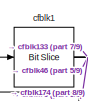
[diagram: root canvas - part 1/9, top left region]
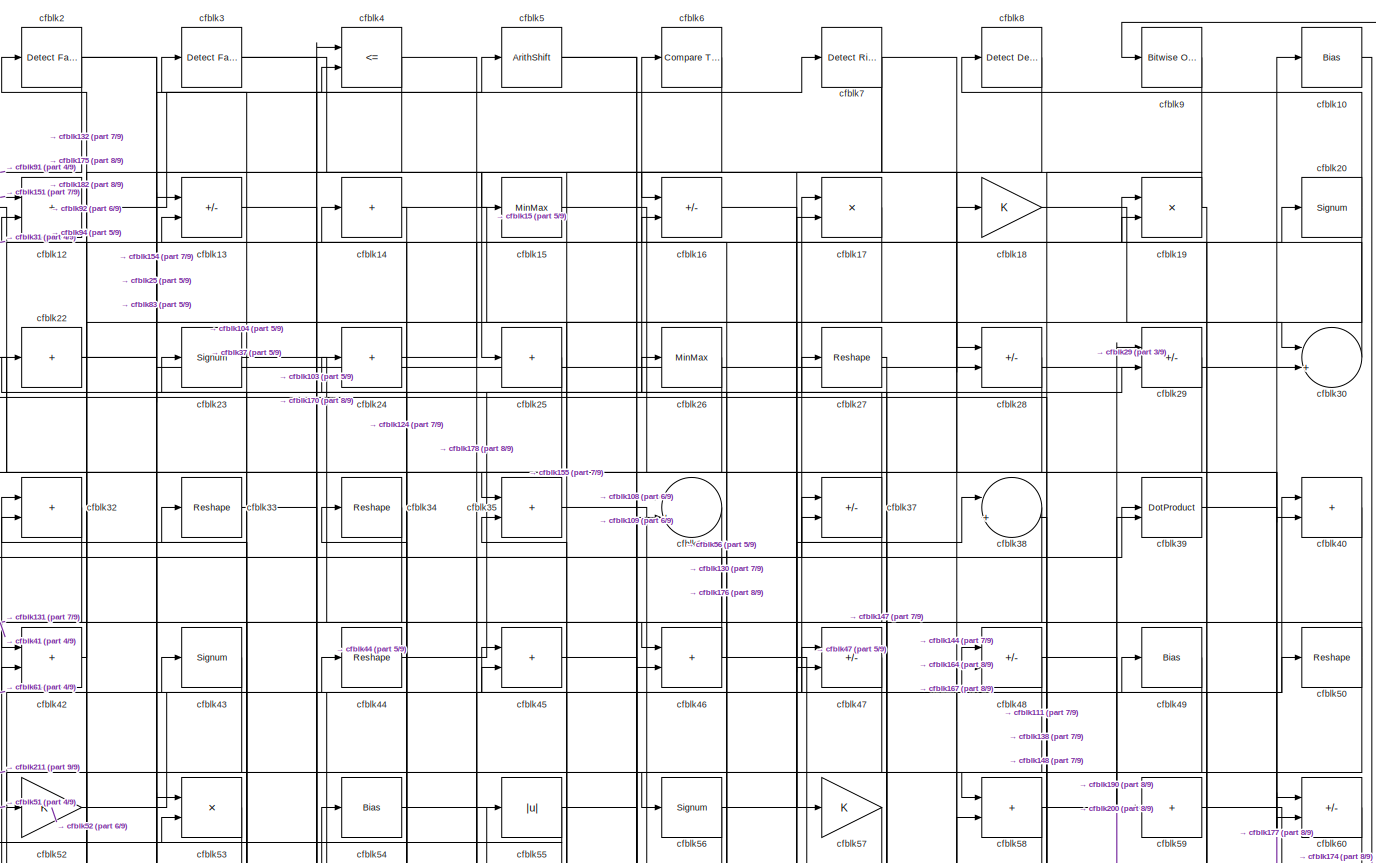
[diagram: root canvas - part 2/9, full width, top band]
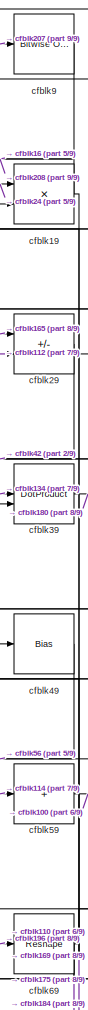
[diagram: root canvas - part 3/9, top right region]
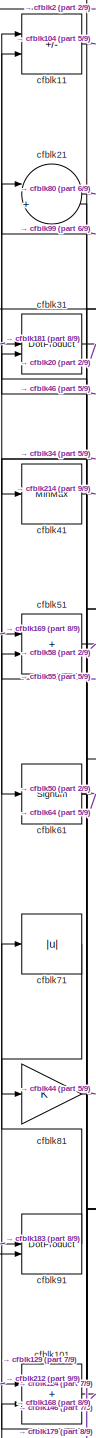
[diagram: root canvas - part 4/9, top left region]
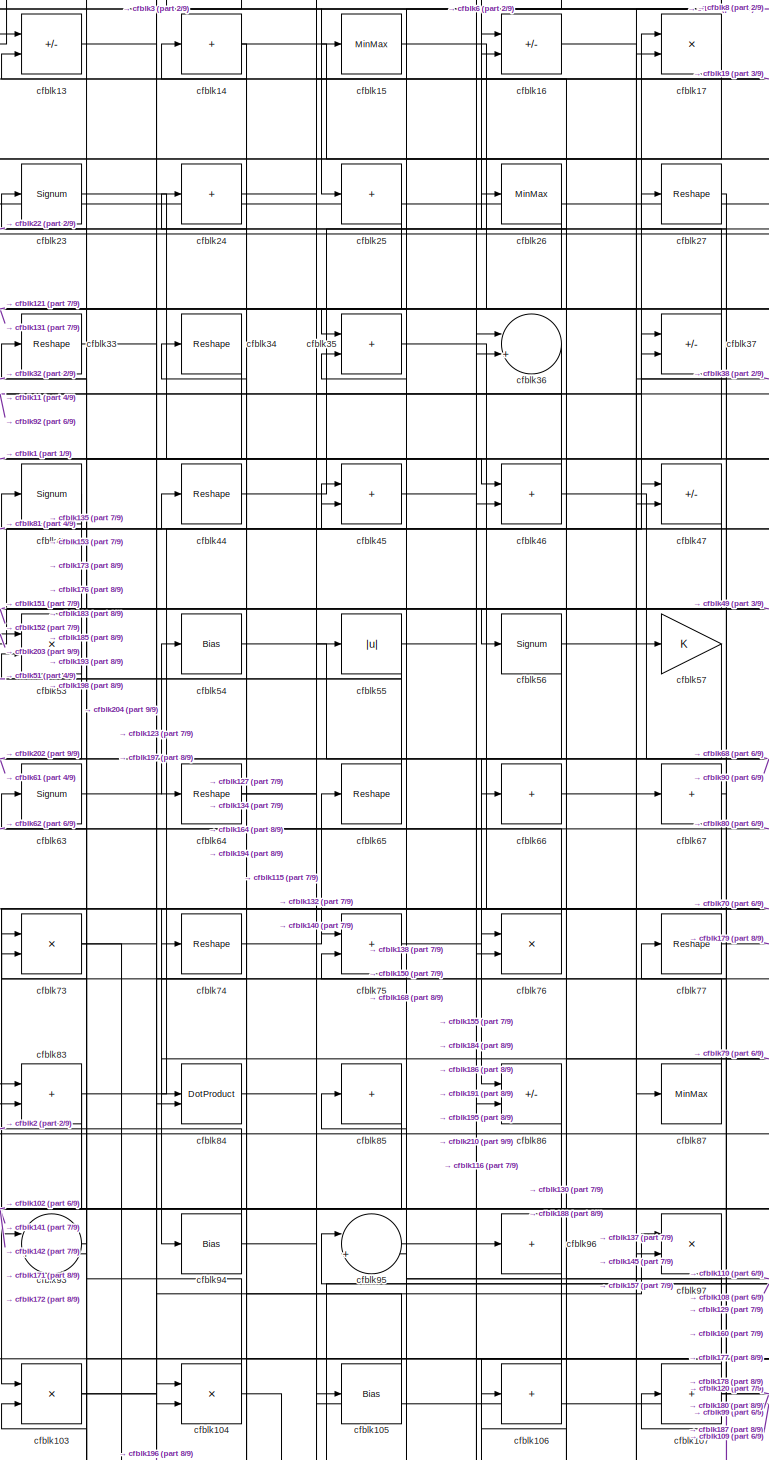
[diagram: root canvas - part 5/9, top center region]
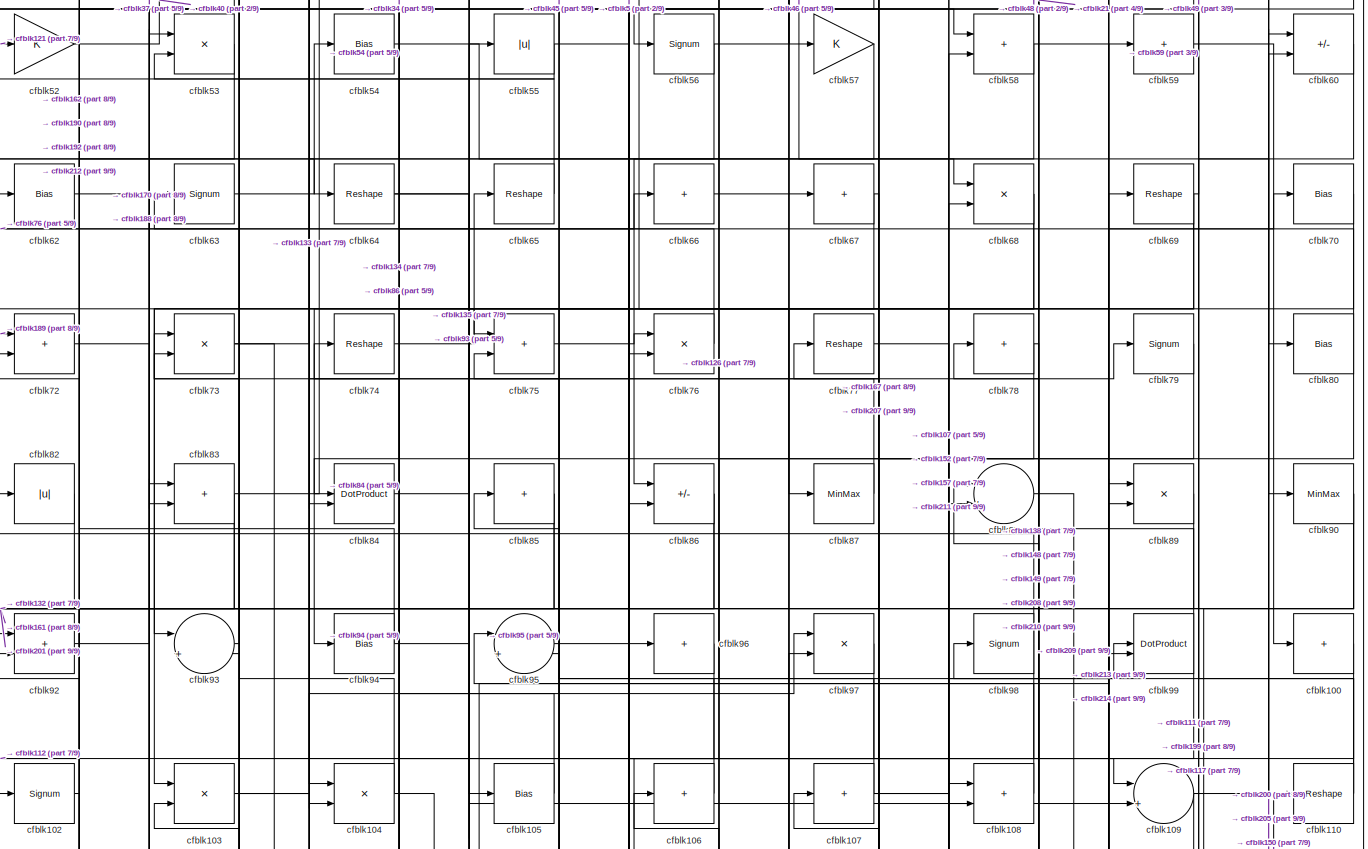
[diagram: root canvas - part 6/9, full width, middle band]
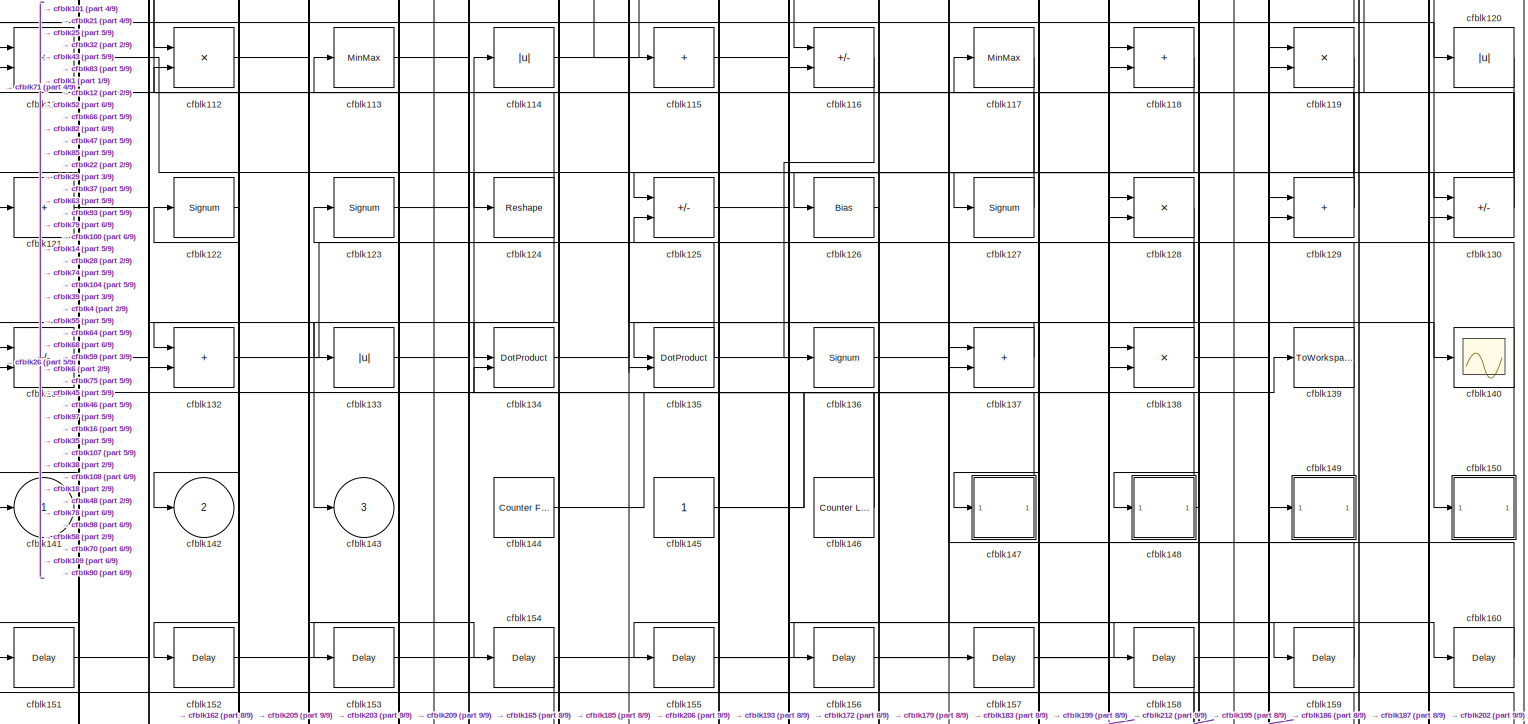
[diagram: root canvas - part 7/9, full width, middle band]
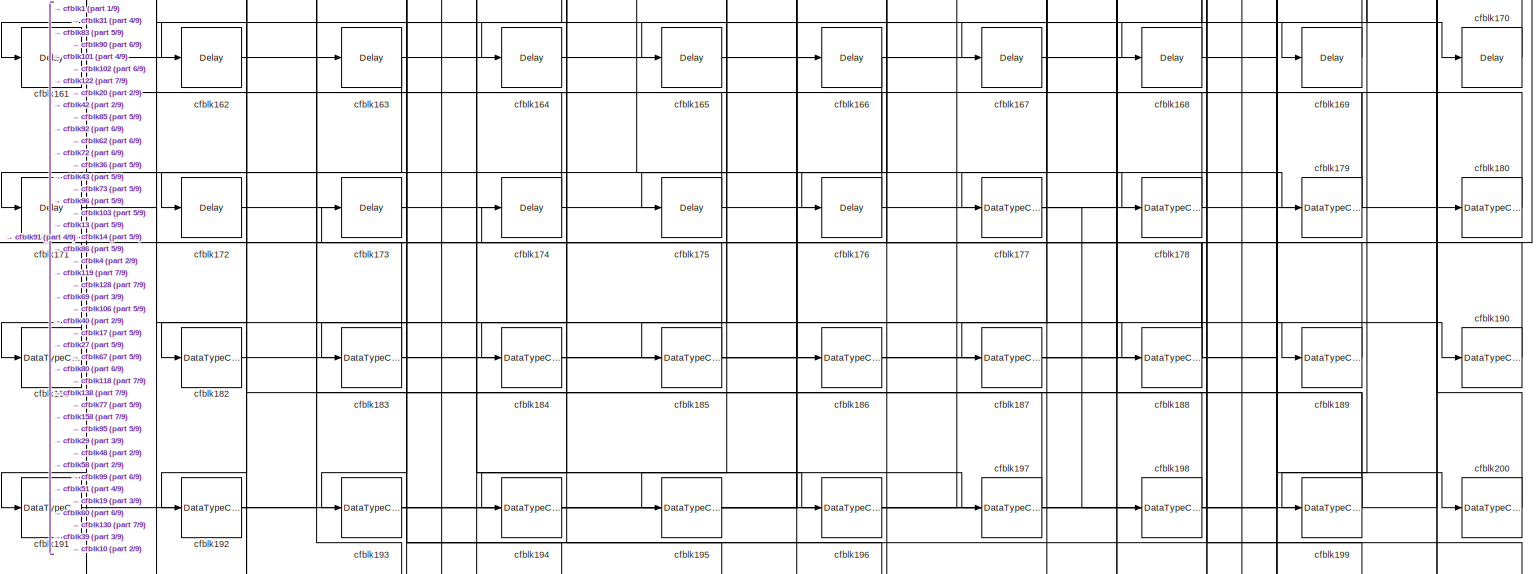
[diagram: root canvas - part 8/9, full width, bottom band]
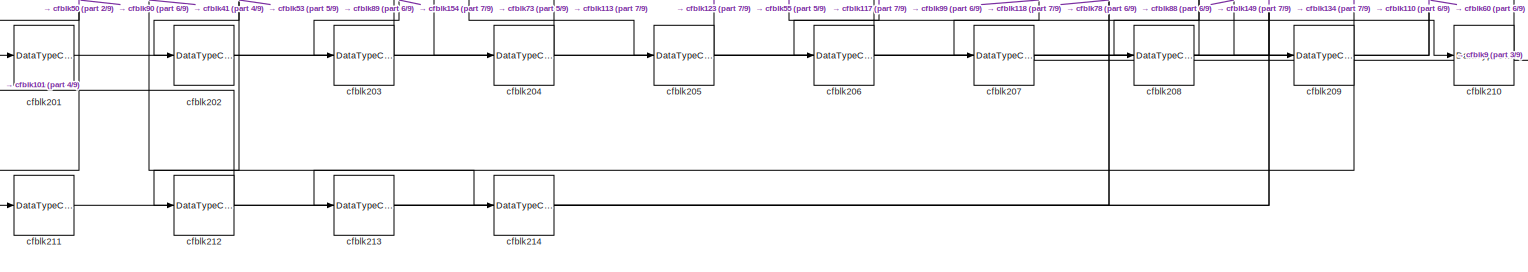
[diagram: root canvas - part 9/9, full width, bottom band]
MODEL slx_18f6e114f823
KIND model
CONFIG AbsTol = auto
CONFIG EnableMultiTasking = off
CONFIG FixedStep = auto
CONFIG MaxStep = auto
CONFIG MinStep = auto
CONFIG RelTol = 1e-3
CONFIG SampleTimeConstraint = Unconstrained
CONFIG SolverName = VariableStepAuto
CONFIG StartTime = 0.0
CONFIG StopTime = 10.0
BLOCK [Reference] cfblk1  REF=hdlsllib/Logic and Bit
Operations/Bit Slice
  SourceBlock = hdlsllib/Logic and Bit\nOperations/Bit Slice
  SourceType = Bit Slice
BLOCK [Bias] cfblk10
  Bias = 0.0
  SaturateOnIntegerOverflow = off
BLOCK [Sum] cfblk100
  IconShape = rectangular
  Inputs = +
BLOCK [Sum] cfblk101
  IconShape = rectangular
BLOCK [Signum] cfblk102
BLOCK [Product] cfblk103
  Inputs = */
  RndMeth = Zero
  SaturateOnIntegerOverflow = on
BLOCK [Product] cfblk104
  Inputs = */
  RndMeth = Zero
  SaturateOnIntegerOverflow = on
BLOCK [Bias] cfblk105
  Bias = 0.0
  SaturateOnIntegerOverflow = off
BLOCK [Sum] cfblk106
  IconShape = rectangular
  Inputs = +
BLOCK [Sum] cfblk107
  IconShape = rectangular
  Inputs = +
BLOCK [Sum] cfblk108
  IconShape = rectangular
BLOCK [Sum] cfblk109
  Inputs = |++
BLOCK [Sum] cfblk11
  IconShape = rectangular
  Inputs = +-
BLOCK [Reshape] cfblk110
BLOCK [Sum] cfblk111
  IconShape = rectangular
BLOCK [Product] cfblk112
  Inputs = */
  RndMeth = Zero
  SaturateOnIntegerOverflow = on
BLOCK [MinMax] cfblk113
BLOCK [Abs] cfblk114
  SaturateOnIntegerOverflow = off
BLOCK [Sum] cfblk115
  IconShape = rectangular
  Inputs = +
BLOCK [Sum] cfblk116
  IconShape = rectangular
  Inputs = +-
BLOCK [MinMax] cfblk117
BLOCK [Sum] cfblk118
  IconShape = rectangular
BLOCK [Product] cfblk119
  Inputs = */
  RndMeth = Zero
  SaturateOnIntegerOverflow = on
BLOCK [Sum] cfblk12
  IconShape = rectangular
BLOCK [Abs] cfblk120
  SaturateOnIntegerOverflow = off
BLOCK [Sum] cfblk121
  IconShape = rectangular
  Inputs = +
BLOCK [Signum] cfblk122
BLOCK [Signum] cfblk123
BLOCK [Reshape] cfblk124
BLOCK [Sum] cfblk125
  IconShape = rectangular
  Inputs = +-
BLOCK [Bias] cfblk126
  Bias = 0.0
  SaturateOnIntegerOverflow = off
BLOCK [Signum] cfblk127
BLOCK [Product] cfblk128
  Inputs = */
  RndMeth = Zero
  SaturateOnIntegerOverflow = on
BLOCK [Sum] cfblk129
  IconShape = rectangular
BLOCK [Sum] cfblk13
  IconShape = rectangular
  Inputs = +-
BLOCK [Sum] cfblk130
  IconShape = rectangular
  Inputs = +-
BLOCK [Sum] cfblk131
  IconShape = rectangular
  Inputs = +-
BLOCK [Sum] cfblk132
  IconShape = rectangular
BLOCK [Abs] cfblk133
  SaturateOnIntegerOverflow = off
BLOCK [DotProduct] cfblk134
  OutDataTypeStr = Inherit: Inherit via internal rule
BLOCK [DotProduct] cfblk135
  OutDataTypeStr = Inherit: Inherit via internal rule
BLOCK [Signum] cfblk136
BLOCK [Sum] cfblk137
  IconShape = rectangular
BLOCK [Product] cfblk138
  Inputs = */
  RndMeth = Zero
  SaturateOnIntegerOverflow = on
BLOCK [ToWorkspace] cfblk139
  MaxDataPoints = inf
  SampleTime = -1
  SaveFormat = Timeseries
  VariableName = simout
BLOCK [Sum] cfblk14
  IconShape = rectangular
  Inputs = +
BLOCK [Scope] cfblk140
  Floating = off
  NumInputPorts = 1
  ScopeSpecificationString = Simulink.scopes.TimeScopeBlockCfg('CurrentConfiguration', extmgr.ConfigurationSet(extmgr.Configuration('Core','General UI',true),extmgr.Configuration('Core','Source UI',true),extmgr.Configuration('Sources','WiredSimulink',true,'DataLoggingVariableName','ScopeData2','DataLoggingSaveFormat','Array','DataLoggingLimitDataPoints',true,'DataLoggingDecimation','1'),extmgr.Configuration('Visuals','Time Do...<+868ch>
BLOCK [Outport] cfblk141
  VectorParamsAs1DForOutWhenUnconnected = off
BLOCK [Outport] cfblk142
  Port = 2
  VectorParamsAs1DForOutWhenUnconnected = off
BLOCK [Outport] cfblk143
  Port = 3
  VectorParamsAs1DForOutWhenUnconnected = off
BLOCK [Reference] cfblk144  REF=hdlsllib/Sources/Counter
Free-Running
  SourceBlock = hdlsllib/Sources/Counter\nFree-Running
  SourceType = Counter Free-Running
BLOCK [Constant] cfblk145
  SampleTime = -1
BLOCK [Reference] cfblk146  REF=hdlsllib/Sources/Counter
Limited
  SourceBlock = hdlsllib/Sources/Counter\nLimited
  SourceType = Counter Limited
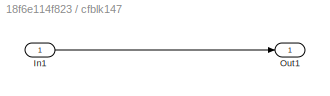
BLOCK [SubSystem] cfblk147
  LibrarySourceBlock = hdlsllib/Ports &\nSubsystems/Subsystem
BLOCK [Inport] cfblk147/In1
BLOCK [Outport] cfblk147/Out1
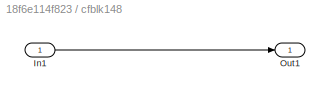
BLOCK [SubSystem] cfblk148
  LibrarySourceBlock = hdlsllib/Ports &\nSubsystems/Subsystem
BLOCK [Inport] cfblk148/In1
BLOCK [Outport] cfblk148/Out1
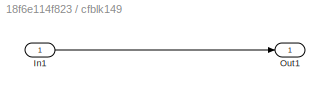
BLOCK [SubSystem] cfblk149
  LibrarySourceBlock = hdlsllib/Ports &\nSubsystems/Subsystem
BLOCK [Inport] cfblk149/In1
BLOCK [Outport] cfblk149/Out1
BLOCK [MinMax] cfblk15
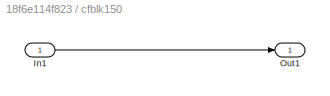
BLOCK [SubSystem] cfblk150
  LibrarySourceBlock = hdlsllib/Ports &\nSubsystems/Subsystem
BLOCK [Inport] cfblk150/In1
BLOCK [Outport] cfblk150/Out1
BLOCK [Delay] cfblk151
  InputPortMap = u0
  SampleTime = 1
BLOCK [Delay] cfblk152
  InputPortMap = u0
  SampleTime = 1
BLOCK [Delay] cfblk153
  InputPortMap = u0
  SampleTime = 1
BLOCK [Delay] cfblk154
  InputPortMap = u0
  SampleTime = 1
BLOCK [Delay] cfblk155
  InputPortMap = u0
  SampleTime = 1
BLOCK [Delay] cfblk156
  InputPortMap = u0
  SampleTime = 1
BLOCK [Delay] cfblk157
  InputPortMap = u0
  SampleTime = 1
BLOCK [Delay] cfblk158
  InputPortMap = u0
  SampleTime = 1
BLOCK [Delay] cfblk159
  InputPortMap = u0
  SampleTime = 1
BLOCK [Sum] cfblk16
  IconShape = rectangular
  Inputs = +-
BLOCK [Delay] cfblk160
  InputPortMap = u0
  SampleTime = 1
BLOCK [Delay] cfblk161
  InputPortMap = u0
  SampleTime = 1
BLOCK [Delay] cfblk162
  InputPortMap = u0
  SampleTime = 1
BLOCK [Delay] cfblk163
  InputPortMap = u0
  SampleTime = 1
BLOCK [Delay] cfblk164
  InputPortMap = u0
  SampleTime = 1
BLOCK [Delay] cfblk165
  InputPortMap = u0
  SampleTime = 1
BLOCK [Delay] cfblk166
  InputPortMap = u0
  SampleTime = 1
BLOCK [Delay] cfblk167
  InputPortMap = u0
  SampleTime = 1
BLOCK [Delay] cfblk168
  InputPortMap = u0
  SampleTime = 1
BLOCK [Delay] cfblk169
  InputPortMap = u0
  SampleTime = 1
BLOCK [Product] cfblk17
  Inputs = */
  RndMeth = Zero
  SaturateOnIntegerOverflow = on
BLOCK [Delay] cfblk170
  InputPortMap = u0
  SampleTime = 1
BLOCK [Delay] cfblk171
  InputPortMap = u0
  SampleTime = 1
BLOCK [Delay] cfblk172
  InputPortMap = u0
  SampleTime = 1
BLOCK [Delay] cfblk173
  InputPortMap = u0
  SampleTime = 1
BLOCK [Delay] cfblk174
  InputPortMap = u0
  SampleTime = 1
BLOCK [Delay] cfblk175
  InputPortMap = u0
  SampleTime = 1
BLOCK [Delay] cfblk176
  InputPortMap = u0
  SampleTime = 1
BLOCK [DataTypeConversion] cfblk177
  RndMeth = Floor
  SaturateOnIntegerOverflow = off
BLOCK [DataTypeConversion] cfblk178
  OutDataTypeStr = uint8
  RndMeth = Floor
  SaturateOnIntegerOverflow = off
BLOCK [DataTypeConversion] cfblk179
  RndMeth = Floor
  SaturateOnIntegerOverflow = off
BLOCK [Gain] cfblk18
BLOCK [DataTypeConversion] cfblk180
  OutDataTypeStr = uint8
  RndMeth = Floor
  SaturateOnIntegerOverflow = off
BLOCK [DataTypeConversion] cfblk181
  OutDataTypeStr = uint8
  RndMeth = Floor
  SaturateOnIntegerOverflow = off
BLOCK [DataTypeConversion] cfblk182
  OutDataTypeStr = uint8
  RndMeth = Floor
  SaturateOnIntegerOverflow = off
BLOCK [DataTypeConversion] cfblk183
  RndMeth = Floor
  SaturateOnIntegerOverflow = off
BLOCK [DataTypeConversion] cfblk184
  OutDataTypeStr = uint8
  RndMeth = Floor
  SaturateOnIntegerOverflow = off
BLOCK [DataTypeConversion] cfblk185
  RndMeth = Floor
  SaturateOnIntegerOverflow = off
BLOCK [DataTypeConversion] cfblk186
  OutDataTypeStr = uint8
  RndMeth = Floor
  SaturateOnIntegerOverflow = off
BLOCK [DataTypeConversion] cfblk187
  OutDataTypeStr = uint8
  RndMeth = Floor
  SaturateOnIntegerOverflow = off
BLOCK [DataTypeConversion] cfblk188
  RndMeth = Floor
  SaturateOnIntegerOverflow = off
BLOCK [DataTypeConversion] cfblk189
  OutDataTypeStr = uint8
  RndMeth = Floor
  SaturateOnIntegerOverflow = off
BLOCK [Product] cfblk19
  Inputs = */
  RndMeth = Zero
  SaturateOnIntegerOverflow = on
BLOCK [DataTypeConversion] cfblk190
  OutDataTypeStr = uint8
  RndMeth = Floor
  SaturateOnIntegerOverflow = off
BLOCK [DataTypeConversion] cfblk191
  OutDataTypeStr = uint8
  RndMeth = Floor
  SaturateOnIntegerOverflow = off
BLOCK [DataTypeConversion] cfblk192
  OutDataTypeStr = uint8
  RndMeth = Floor
  SaturateOnIntegerOverflow = off
BLOCK [DataTypeConversion] cfblk193
  RndMeth = Floor
  SaturateOnIntegerOverflow = off
BLOCK [DataTypeConversion] cfblk194
  OutDataTypeStr = uint8
  RndMeth = Floor
  SaturateOnIntegerOverflow = off
BLOCK [DataTypeConversion] cfblk195
  OutDataTypeStr = uint8
  RndMeth = Floor
  SaturateOnIntegerOverflow = off
BLOCK [DataTypeConversion] cfblk196
  RndMeth = Floor
  SaturateOnIntegerOverflow = off
BLOCK [DataTypeConversion] cfblk197
  OutDataTypeStr = uint8
  RndMeth = Floor
  SaturateOnIntegerOverflow = off
BLOCK [DataTypeConversion] cfblk198
  OutDataTypeStr = uint8
  RndMeth = Floor
  SaturateOnIntegerOverflow = off
BLOCK [DataTypeConversion] cfblk199
  RndMeth = Floor
  SaturateOnIntegerOverflow = off
BLOCK [Reference] cfblk2  REF=hdlsllib/Logic and Bit
Operations/Detect Fall
Negative
  SourceBlock = hdlsllib/Logic and Bit\nOperations/Detect Fall\nNegative
  SourceType = Detect Fall Negative
BLOCK [Signum] cfblk20
BLOCK [DataTypeConversion] cfblk200
  OutDataTypeStr = uint8
  RndMeth = Floor
  SaturateOnIntegerOverflow = off
BLOCK [DataTypeConversion] cfblk201
  OutDataTypeStr = uint8
  RndMeth = Floor
  SaturateOnIntegerOverflow = off
BLOCK [DataTypeConversion] cfblk202
  OutDataTypeStr = uint8
  RndMeth = Floor
  SaturateOnIntegerOverflow = off
BLOCK [DataTypeConversion] cfblk203
  OutDataTypeStr = uint8
  RndMeth = Floor
  SaturateOnIntegerOverflow = off
BLOCK [DataTypeConversion] cfblk204
  OutDataTypeStr = uint8
  RndMeth = Floor
  SaturateOnIntegerOverflow = off
BLOCK [DataTypeConversion] cfblk205
  RndMeth = Floor
  SaturateOnIntegerOverflow = off
BLOCK [DataTypeConversion] cfblk206
  OutDataTypeStr = uint8
  RndMeth = Floor
  SaturateOnIntegerOverflow = off
BLOCK [DataTypeConversion] cfblk207
  OutDataTypeStr = boolean
  RndMeth = Floor
  SaturateOnIntegerOverflow = off
BLOCK [DataTypeConversion] cfblk208
  OutDataTypeStr = uint8
  RndMeth = Floor
  SaturateOnIntegerOverflow = off
BLOCK [DataTypeConversion] cfblk209
  RndMeth = Floor
  SaturateOnIntegerOverflow = off
BLOCK [Sum] cfblk21
  Inputs = |++
BLOCK [DataTypeConversion] cfblk210
  OutDataTypeStr = uint8
  RndMeth = Floor
  SaturateOnIntegerOverflow = off
BLOCK [DataTypeConversion] cfblk211
  OutDataTypeStr = uint8
  RndMeth = Floor
  SaturateOnIntegerOverflow = off
BLOCK [DataTypeConversion] cfblk212
  RndMeth = Floor
  SaturateOnIntegerOverflow = off
BLOCK [DataTypeConversion] cfblk213
  OutDataTypeStr = uint8
  RndMeth = Floor
  SaturateOnIntegerOverflow = off
BLOCK [DataTypeConversion] cfblk214
  OutDataTypeStr = uint8
  RndMeth = Floor
  SaturateOnIntegerOverflow = off
BLOCK [Sum] cfblk22
  IconShape = rectangular
  Inputs = +
BLOCK [Signum] cfblk23
BLOCK [Sum] cfblk24
  IconShape = rectangular
  Inputs = +
BLOCK [Sum] cfblk25
  IconShape = rectangular
  Inputs = +
BLOCK [MinMax] cfblk26
BLOCK [Reshape] cfblk27
BLOCK [Sum] cfblk28
  IconShape = rectangular
  Inputs = +-
BLOCK [Sum] cfblk29
  IconShape = rectangular
  Inputs = +-
BLOCK [Reference] cfblk3  REF=hdlsllib/Logic and Bit
Operations/Detect Fall
Nonpositive
  SourceBlock = hdlsllib/Logic and Bit\nOperations/Detect Fall\nNonpositive
  SourceType = Detect Fall Nonpositive
BLOCK [Sum] cfblk30
  Inputs = |++
BLOCK [DotProduct] cfblk31
  OutDataTypeStr = Inherit: Inherit via internal rule
BLOCK [Sum] cfblk32
  IconShape = rectangular
BLOCK [Reshape] cfblk33
BLOCK [Reshape] cfblk34
BLOCK [Sum] cfblk35
  IconShape = rectangular
BLOCK [Sum] cfblk36
  Inputs = |++
BLOCK [Sum] cfblk37
  IconShape = rectangular
  Inputs = +-
BLOCK [Sum] cfblk38
  Inputs = |++
BLOCK [DotProduct] cfblk39
  OutDataTypeStr = Inherit: Inherit via internal rule
BLOCK [RelationalOperator] cfblk4
  InputSameDT = off
  Operator = <=
  OutDataTypeStr = boolean
BLOCK [Sum] cfblk40
  IconShape = rectangular
BLOCK [MinMax] cfblk41
BLOCK [Sum] cfblk42
  IconShape = rectangular
BLOCK [Signum] cfblk43
BLOCK [Reshape] cfblk44
BLOCK [Sum] cfblk45
  IconShape = rectangular
BLOCK [Sum] cfblk46
  IconShape = rectangular
BLOCK [Sum] cfblk47
  IconShape = rectangular
  Inputs = +-
BLOCK [Sum] cfblk48
  IconShape = rectangular
  Inputs = +-
BLOCK [Bias] cfblk49
  Bias = 0.0
  SaturateOnIntegerOverflow = off
BLOCK [ArithShift] cfblk5
  BitShiftNumber = 8
  InputPortMap = u0
BLOCK [Reshape] cfblk50
BLOCK [Sum] cfblk51
  IconShape = rectangular
BLOCK [Gain] cfblk52
BLOCK [Product] cfblk53
  Inputs = */
  RndMeth = Zero
  SaturateOnIntegerOverflow = on
BLOCK [Bias] cfblk54
  Bias = 0.0
  SaturateOnIntegerOverflow = off
BLOCK [Abs] cfblk55
  SaturateOnIntegerOverflow = off
BLOCK [Signum] cfblk56
BLOCK [Gain] cfblk57
BLOCK [Sum] cfblk58
  IconShape = rectangular
BLOCK [Sum] cfblk59
  IconShape = rectangular
  Inputs = +
BLOCK [Reference] cfblk6  REF=hdlsllib/Logic and Bit
Operations/Compare
To Zero
  SourceBlock = hdlsllib/Logic and Bit\nOperations/Compare\nTo Zero
  SourceType = Compare To Zero
BLOCK [Sum] cfblk60
  IconShape = rectangular
  Inputs = +-
BLOCK [Signum] cfblk61
BLOCK [Bias] cfblk62
  Bias = 0.0
  SaturateOnIntegerOverflow = off
BLOCK [Signum] cfblk63
BLOCK [Reshape] cfblk64
BLOCK [Reshape] cfblk65
BLOCK [Sum] cfblk66
  IconShape = rectangular
  Inputs = +
BLOCK [Sum] cfblk67
  IconShape = rectangular
  Inputs = +
BLOCK [Product] cfblk68
  Inputs = */
  RndMeth = Zero
  SaturateOnIntegerOverflow = on
BLOCK [Reshape] cfblk69
BLOCK [Reference] cfblk7  REF=hdlsllib/Logic and Bit
Operations/Detect Rise
Nonnegative
  SourceBlock = hdlsllib/Logic and Bit\nOperations/Detect Rise\nNonnegative
  SourceType = Detect Rise Nonnegative
BLOCK [Bias] cfblk70
  Bias = 0.0
  SaturateOnIntegerOverflow = off
BLOCK [Abs] cfblk71
  SaturateOnIntegerOverflow = off
BLOCK [Sum] cfblk72
  IconShape = rectangular
BLOCK [Product] cfblk73
  Inputs = */
  RndMeth = Zero
  SaturateOnIntegerOverflow = on
BLOCK [Reshape] cfblk74
BLOCK [Sum] cfblk75
  IconShape = rectangular
BLOCK [Product] cfblk76
  Inputs = */
  RndMeth = Zero
  SaturateOnIntegerOverflow = on
BLOCK [Reshape] cfblk77
BLOCK [Sum] cfblk78
  IconShape = rectangular
  Inputs = +
BLOCK [Signum] cfblk79
BLOCK [Reference] cfblk8  REF=simulink/Logic and Bit
Operations/Detect
Decrease
  LibrarySourceBlock = hdlsllib/Logic and Bit\nOperations/Detect\nDecrease
  SourceBlock = simulink/Logic and Bit\nOperations/Detect\nDecrease
  SourceType = Detect Decrease
BLOCK [Bias] cfblk80
  Bias = 0.0
  SaturateOnIntegerOverflow = off
BLOCK [Gain] cfblk81
BLOCK [Abs] cfblk82
  SaturateOnIntegerOverflow = off
BLOCK [Sum] cfblk83
  IconShape = rectangular
BLOCK [DotProduct] cfblk84
  OutDataTypeStr = Inherit: Inherit via internal rule
BLOCK [Sum] cfblk85
  IconShape = rectangular
  Inputs = +
BLOCK [Sum] cfblk86
  IconShape = rectangular
  Inputs = +-
BLOCK [MinMax] cfblk87
BLOCK [Sum] cfblk88
  Inputs = |++
BLOCK [Product] cfblk89
  Inputs = */
  RndMeth = Zero
  SaturateOnIntegerOverflow = on
BLOCK [Reference] cfblk9  REF=simulink/Logic and Bit
Operations/Bitwise
Operator
  LibrarySourceBlock = hdlsllib/Logic and Bit\nOperations/Bitwise\nOperator
  SourceBlock = simulink/Logic and Bit\nOperations/Bitwise\nOperator
  SourceType = Bitwise Operator
BLOCK [MinMax] cfblk90
BLOCK [DotProduct] cfblk91
  OutDataTypeStr = Inherit: Inherit via internal rule
BLOCK [Sum] cfblk92
  IconShape = rectangular
BLOCK [Sum] cfblk93
  Inputs = |++
BLOCK [Bias] cfblk94
  Bias = 0.0
  SaturateOnIntegerOverflow = off
BLOCK [Sum] cfblk95
  Inputs = |++
BLOCK [Sum] cfblk96
  IconShape = rectangular
  Inputs = +
BLOCK [Product] cfblk97
  Inputs = */
  RndMeth = Zero
  SaturateOnIntegerOverflow = on
BLOCK [Signum] cfblk98
BLOCK [DotProduct] cfblk99
  OutDataTypeStr = Inherit: Inherit via internal rule
LINE cfblk100:1 -> cfblk134:1
LINE cfblk101:1 -> cfblk168:1
LINE cfblk102:1 -> cfblk192:1
NET cfblk103:1 -> cfblk197:1, cfblk7:1
NET cfblk104:1 -> cfblk115:1, cfblk32:1
LINE cfblk105:1 -> cfblk24:1
LINE cfblk106:1 -> cfblk85:1
NET cfblk107:1 -> cfblk120:1, cfblk26:1, cfblk99:1
LINE cfblk108:1 -> cfblk95:1
NET cfblk109:1 -> cfblk111:2, cfblk150:1
LINE cfblk10:1 -> cfblk174:1
NET cfblk110:1 -> cfblk45:2, cfblk49:1
LINE cfblk111:1 -> cfblk129:2
LINE cfblk112:1 -> cfblk29:2
LINE cfblk113:1 -> cfblk205:1
LINE cfblk114:1 -> cfblk59:1
LINE cfblk115:1 -> cfblk160:1
LINE cfblk116:1 -> cfblk136:1
LINE cfblk117:1 -> cfblk206:1
LINE cfblk118:1 -> cfblk125:1
LINE cfblk119:1 -> cfblk185:1
LINE cfblk11:1 -> cfblk104:1
LINE cfblk120:1 -> cfblk127:1
LINE cfblk121:1 -> cfblk52:1
LINE cfblk122:1 -> cfblk162:1
LINE cfblk123:1 -> cfblk97:1
NET cfblk124:1 -> cfblk143:1, cfblk21:2
LINE cfblk125:1 -> cfblk130:1
LINE cfblk126:1 -> cfblk156:1
LINE cfblk127:1 -> cfblk74:1
LINE cfblk128:1 -> cfblk165:1
NET cfblk129:1 -> cfblk107:1, cfblk71:1
LINE cfblk12:1 -> cfblk5:1
NET cfblk130:1 -> cfblk16:2, cfblk32:2
LINE cfblk131:1 -> cfblk66:1
LINE cfblk132:1 -> cfblk55:1
LINE cfblk133:1 -> cfblk79:1
NET cfblk134:1 -> cfblk14:1, cfblk39:1
NET cfblk135:1 -> cfblk158:1, cfblk63:1
LINE cfblk136:1 -> cfblk159:1
LINE cfblk137:1 -> cfblk135:1
NET cfblk138:1 -> cfblk48:1, cfblk70:1, cfblk75:2
LINE cfblk13:1 -> cfblk196:1
LINE cfblk144:1 -> cfblk18:1
NET cfblk145:1 -> cfblk139:1, cfblk97:2
NET cfblk146:1 -> cfblk101:2, cfblk112:2
LINE cfblk147/In1:1 -> cfblk147/Out1:1
LINE cfblk147:1 -> cfblk125:2
LINE cfblk148/In1:1 -> cfblk148/Out1:1
NET cfblk148:1 -> cfblk114:1, cfblk38:2
LINE cfblk149/In1:1 -> cfblk149/Out1:1
LINE cfblk149:1 -> cfblk98:1
NET cfblk14:1 -> cfblk164:1, cfblk57:1
LINE cfblk150/In1:1 -> cfblk150/Out1:1
LINE cfblk150:1 -> cfblk35:2
LINE cfblk151:1 -> cfblk12:1
LINE cfblk152:1 -> cfblk108:1
LINE cfblk153:1 -> cfblk93:2
LINE cfblk154:1 -> cfblk203:1
LINE cfblk155:1 -> cfblk46:2
LINE cfblk156:1 -> cfblk129:1
LINE cfblk157:1 -> cfblk68:2
LINE cfblk158:1 -> cfblk195:1
LINE cfblk159:1 -> cfblk137:1
LINE cfblk15:1 -> cfblk67:1
LINE cfblk160:1 -> cfblk37:2
LINE cfblk161:1 -> cfblk99:2
LINE cfblk162:1 -> cfblk92:2
LINE cfblk163:1 -> cfblk191:1
LINE cfblk164:1 -> cfblk48:2
LINE cfblk165:1 -> cfblk29:1
LINE cfblk166:1 -> cfblk181:1
LINE cfblk167:1 -> cfblk58:2
LINE cfblk168:1 -> cfblk95:2
LINE cfblk169:1 -> cfblk51:1
LINE cfblk16:1 -> cfblk87:1
LINE cfblk170:1 -> cfblk4:1
LINE cfblk171:1 -> cfblk189:1
LINE cfblk172:1 -> cfblk138:2
LINE cfblk173:1 -> cfblk73:2
LINE cfblk174:1 -> cfblk1:1
LINE cfblk175:1 -> cfblk42:2
LINE cfblk176:1 -> cfblk103:2
NET cfblk177:1 -> cfblk10:1, cfblk198:1
LINE cfblk178:1 -> cfblk27:1
NET cfblk179:1 -> cfblk128:1, cfblk31:2
LINE cfblk17:1 -> cfblk35:1
LINE cfblk180:1 -> cfblk77:1
LINE cfblk181:1 -> cfblk31:1
LINE cfblk182:1 -> cfblk166:1
NET cfblk183:1 -> cfblk128:2, cfblk91:1
LINE cfblk184:1 -> cfblk96:1
NET cfblk185:1 -> cfblk138:1, cfblk43:1
LINE cfblk186:1 -> cfblk119:1
LINE cfblk187:1 -> cfblk119:2
NET cfblk188:1 -> cfblk106:1, cfblk173:1, cfblk83:1
LINE cfblk189:1 -> cfblk72:1
LINE cfblk18:1 -> cfblk30:1
LINE cfblk190:1 -> cfblk72:2
LINE cfblk191:1 -> cfblk86:2
LINE cfblk192:1 -> cfblk163:1
NET cfblk193:1 -> cfblk130:2, cfblk17:2
LINE cfblk194:1 -> cfblk36:1
LINE cfblk195:1 -> cfblk36:2
NET cfblk196:1 -> cfblk39:2, cfblk69:1
LINE cfblk197:1 -> cfblk13:1
LINE cfblk198:1 -> cfblk13:2
NET cfblk199:1 -> cfblk118:1, cfblk122:1
NET cfblk19:1 -> cfblk169:1, cfblk16:1
NET cfblk1:1 -> cfblk133:1, cfblk46:1, cfblk75:1
LINE cfblk200:1 -> cfblk60:1
LINE cfblk201:1 -> cfblk60:2
LINE cfblk202:1 -> cfblk149:1
LINE cfblk203:1 -> cfblk53:1
LINE cfblk204:1 -> cfblk53:2
NET cfblk205:1 -> cfblk110:1, cfblk123:1
LINE cfblk206:1 -> cfblk113:1
LINE cfblk207:1 -> cfblk9:1
LINE cfblk208:1 -> cfblk78:1
NET cfblk209:1 -> cfblk134:2, cfblk213:1
NET cfblk20:1 -> cfblk182:1, cfblk8:1
LINE cfblk210:1 -> cfblk88:1
LINE cfblk211:1 -> cfblk88:2
NET cfblk212:1 -> cfblk101:1, cfblk118:2
LINE cfblk213:1 -> cfblk89:1
LINE cfblk214:1 -> cfblk89:2
LINE cfblk21:1 -> cfblk80:1
NET cfblk22:1 -> cfblk154:1, cfblk4:2
LINE cfblk23:1 -> cfblk76:2
LINE cfblk24:1 -> cfblk19:1
LINE cfblk25:1 -> cfblk121:1
LINE cfblk26:1 -> cfblk131:2
LINE cfblk27:1 -> cfblk177:1
LINE cfblk28:1 -> cfblk124:1
LINE cfblk29:1 -> cfblk42:1
NET cfblk2:1 -> cfblk28:2, cfblk30:2, cfblk91:2
LINE cfblk30:1 -> cfblk3:1
LINE cfblk31:1 -> cfblk20:1
LINE cfblk32:1 -> cfblk131:1
LINE cfblk33:1 -> cfblk84:2
LINE cfblk34:1 -> cfblk61:1
LINE cfblk35:1 -> cfblk137:2
LINE cfblk36:1 -> cfblk193:1
NET cfblk37:1 -> cfblk153:1, cfblk22:1
LINE cfblk38:1 -> cfblk147:1
LINE cfblk39:1 -> cfblk180:1
NET cfblk3:1 -> cfblk15:1, cfblk28:1
LINE cfblk40:1 -> cfblk176:1
LINE cfblk41:1 -> cfblk214:1
LINE cfblk42:1 -> cfblk12:2
LINE cfblk43:1 -> cfblk151:1
LINE cfblk44:1 -> cfblk6:1
LINE cfblk45:1 -> cfblk116:2
NET cfblk46:1 -> cfblk11:2, cfblk68:1
LINE cfblk47:1 -> cfblk152:1
NET cfblk48:1 -> cfblk200:1, cfblk92:1
LINE cfblk49:1 -> cfblk56:1
NET cfblk4:1 -> cfblk132:1, cfblk178:1
NET cfblk50:1 -> cfblk211:1, cfblk41:1
LINE cfblk51:1 -> cfblk58:1
LINE cfblk52:1 -> cfblk40:1
LINE cfblk53:1 -> cfblk202:1
LINE cfblk54:1 -> cfblk90:1
NET cfblk55:1 -> cfblk210:1, cfblk51:2
NET cfblk56:1 -> cfblk104:2, cfblk38:1
LINE cfblk57:1 -> cfblk86:1
NET cfblk58:1 -> cfblk111:1, cfblk190:1
LINE cfblk59:1 -> cfblk100:1
NET cfblk5:1 -> cfblk108:2, cfblk109:1
LINE cfblk60:1 -> cfblk199:1
NET cfblk61:1 -> cfblk50:1, cfblk64:1
LINE cfblk62:1 -> cfblk170:1
LINE cfblk63:1 -> cfblk54:1
NET cfblk64:1 -> cfblk105:1, cfblk140:1
LINE cfblk65:1 -> cfblk23:1
LINE cfblk66:1 -> cfblk157:1
NET cfblk67:1 -> cfblk103:1, cfblk187:1
NET cfblk68:1 -> cfblk135:2, cfblk93:1
NET cfblk69:1 -> cfblk175:1, cfblk184:1, cfblk19:2
LINE cfblk6:1 -> cfblk155:1
LINE cfblk70:1 -> cfblk84:1
LINE cfblk71:1 -> cfblk81:1
LINE cfblk72:1 -> cfblk188:1
NET cfblk73:1 -> cfblk204:1, cfblk45:1
LINE cfblk74:1 -> cfblk65:1
LINE cfblk75:1 -> cfblk76:1
LINE cfblk76:1 -> cfblk62:1
LINE cfblk77:1 -> cfblk179:1
NET cfblk78:1 -> cfblk126:1, cfblk148:1
LINE cfblk79:1 -> cfblk94:1
NET cfblk7:1 -> cfblk25:1, cfblk40:2, cfblk83:2
NET cfblk80:1 -> cfblk167:1, cfblk34:1
LINE cfblk81:1 -> cfblk44:1
LINE cfblk82:1 -> cfblk132:2
NET cfblk83:1 -> cfblk141:1, cfblk171:1, cfblk17:1
LINE cfblk84:1 -> cfblk47:1
NET cfblk85:1 -> cfblk142:1, cfblk172:1
NET cfblk86:1 -> cfblk102:1, cfblk194:1
LINE cfblk87:1 -> cfblk33:1
LINE cfblk88:1 -> cfblk209:1
LINE cfblk89:1 -> cfblk212:1
LINE cfblk8:1 -> cfblk47:2
NET cfblk90:1 -> cfblk117:1, cfblk161:1, cfblk201:1
LINE cfblk91:1 -> cfblk11:1
LINE cfblk92:1 -> cfblk37:1
LINE cfblk93:1 -> cfblk73:1
NET cfblk94:1 -> cfblk109:2, cfblk2:1
LINE cfblk95:1 -> cfblk186:1
LINE cfblk96:1 -> cfblk183:1
LINE cfblk97:1 -> cfblk116:1
NET cfblk98:1 -> cfblk112:1, cfblk82:1
NET cfblk99:1 -> cfblk207:1, cfblk21:1
LINE cfblk9:1 -> cfblk208:1
note: NET lines group one-source signal fan-out (src -> all destinations, sorted); 1:1 wires keep LINE
